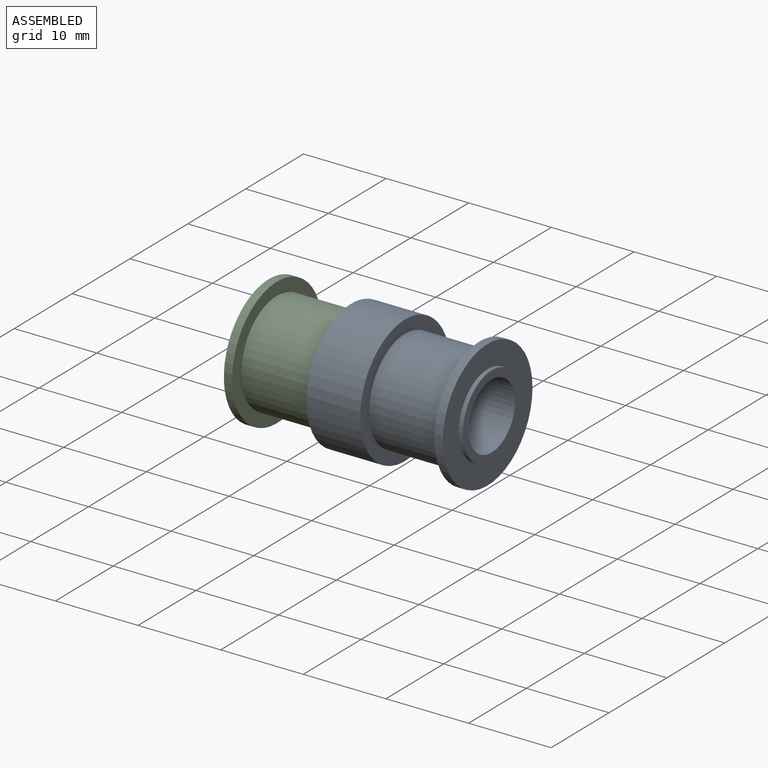
[diagram: assembled view]
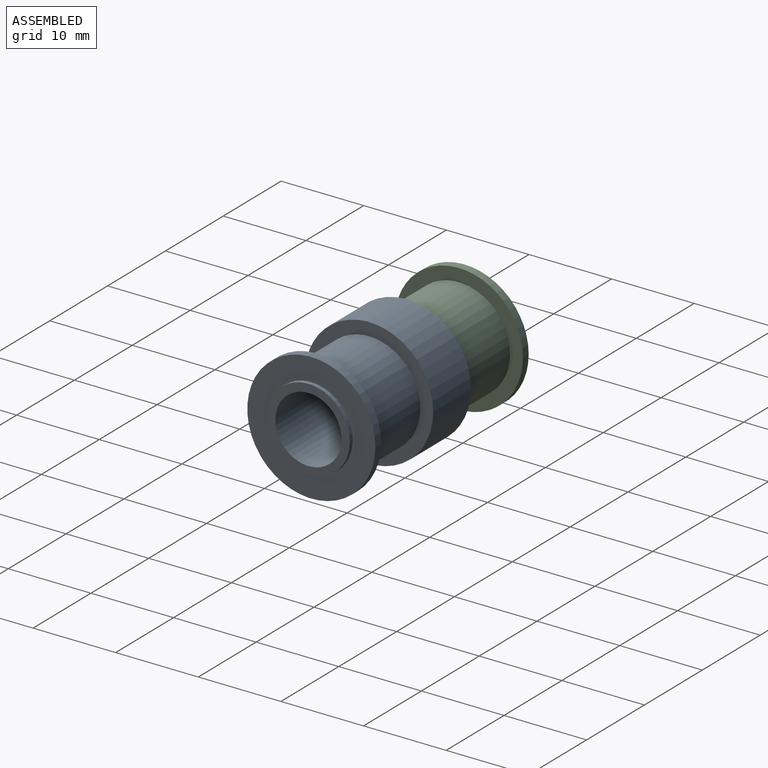
[diagram: assembled view, second angle]
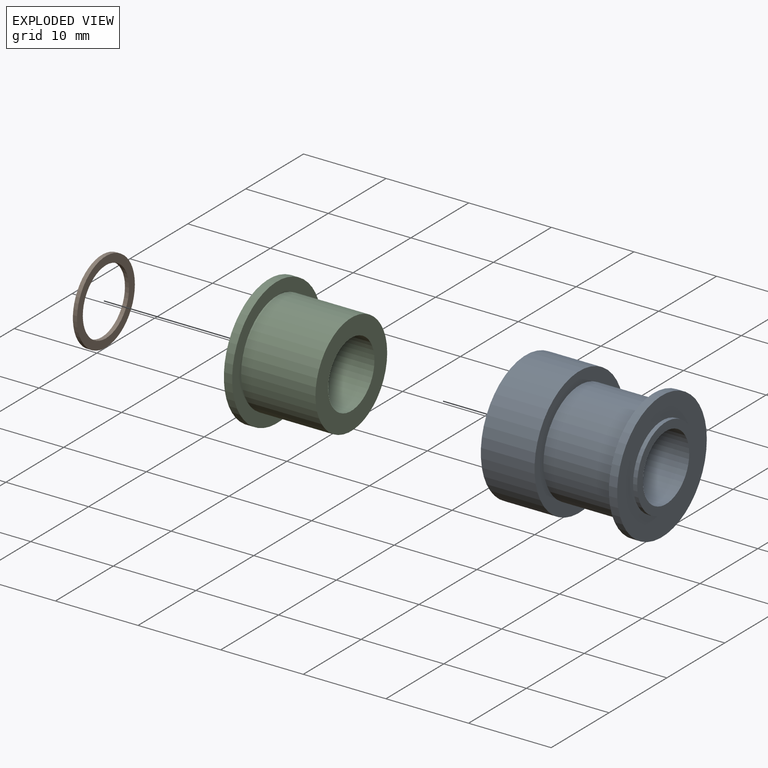
[diagram: exploded view]
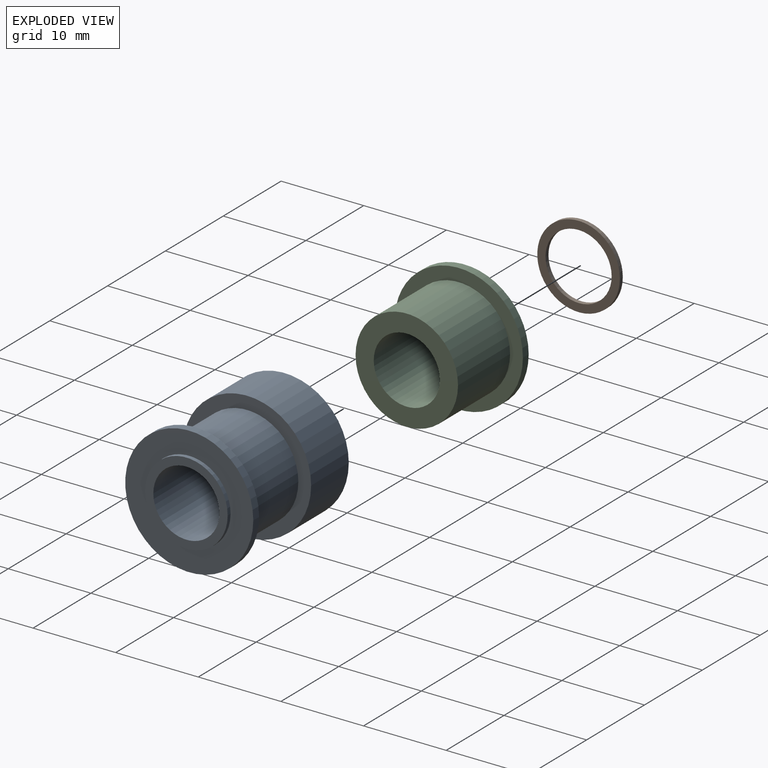
[diagram: exploded view, second angle]
ASSEMBLY  parts=3 mates=2
PART A: 10 faces, bbox 17x15.5x15.5 mm
  f0: cylinder r=7.75mm len=15.5mm, axis (-1,0,0), area 316.5mm2, adj f2,f9
  f1: cylinder r=4mm len=17mm, axis (-1,0,0), area 427.3mm2, adj f2,f4
  f2: plane 15.5x15.5mm, normal (-1,0,0), area 138.4mm2, adj f0,f1
  f3: cylinder r=5mm len=10mm, axis (1,0,0), area 15.7mm2, adj f4,f7
  f4: plane 10x10mm, normal (1,0,0), area 28.3mm2, adj f1,f3
  f5: cylinder r=7.75mm len=15.5mm, axis (1,0,0), area 48.7mm2, adj f6,f7
  f6: plane 15.5x15.5mm, normal (-1,0,0), area 67.9mm2, adj f5,f8
  f7: plane 15.5x15.5mm, normal (1,0,0), area 110.2mm2, adj f3,f5
  f8: cylinder r=6.2mm len=12.4mm, axis (1,0,0), area 350.6mm2, adj f6,f9
  f9: plane 15.5x15.5mm, normal (1,0,0), area 67.9mm2, adj f0,f8
PART B: 4 faces, bbox 0.5x10x10 mm
  f0: cylinder r=4mm len=8mm, axis (-1,0,0), area 12.6mm2, adj f2,f3
  f1: cylinder r=5mm len=10mm, axis (-1,0,0), area 15.7mm2, adj f2,f3
  f2: plane 10x10mm, normal (1,0,0), area 28.3mm2, adj f0,f1
  f3: plane 10x10mm, normal (-1,0,0), area 28.3mm2, adj f0,f1
PART C: 6 faces, bbox 10x15.5x15.5 mm
  f0: cylinder r=7.75mm len=15.5mm, axis (-1,0,0), area 48.7mm2, adj f2,f3
  f1: cylinder r=4mm len=10mm, axis (-1,0,0), area 251.3mm2, adj f3,f5
  f2: plane 15.5x15.5mm, normal (1,0,0), area 67.9mm2, adj f0,f4
  f3: plane 15.5x15.5mm, normal (-1,0,0), area 138.4mm2, adj f0,f1
  f4: cylinder r=6.2mm len=12.4mm, axis (-1,0,0), area 350.6mm2, adj f2,f5
  f5: plane 12.4x12.4mm, normal (1,0,0), area 70.5mm2, adj f1,f4
PLACE A t=(-6.78,25.83,-3.14)mm
PLACE B t=(-6.78,25.83,-3.14)mm
PLACE C t=(-6.78,25.83,-3.14)mm
MATE fastened B.f0 <-> C.f0  axis (1,0,0) through (-6.28,25.83,-3.14)mm
MATE fastened C.f0 <-> A.f0  axis (1,0,0) through (3.72,25.83,-3.14)mm
